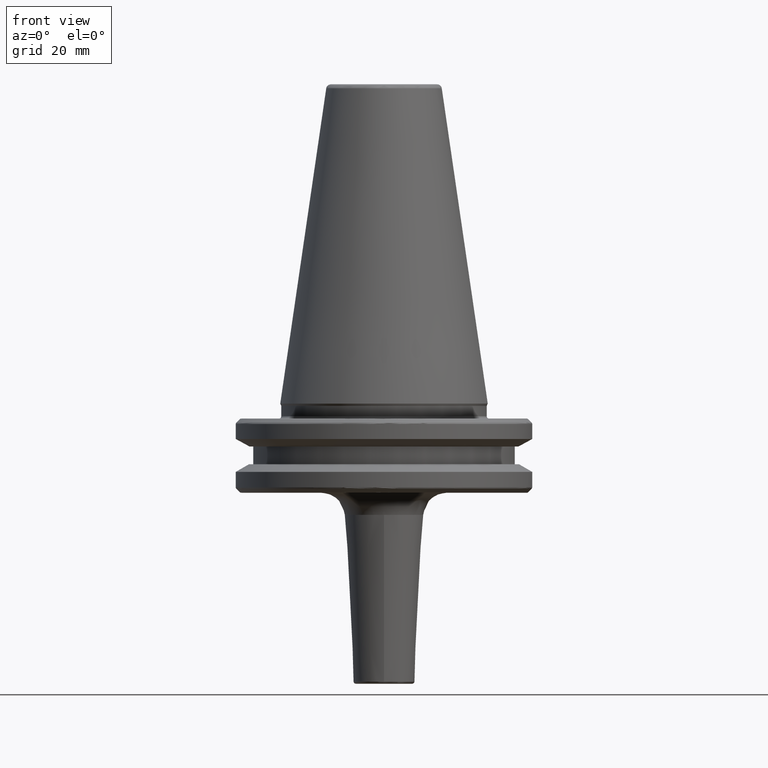
[diagram: clean part render]
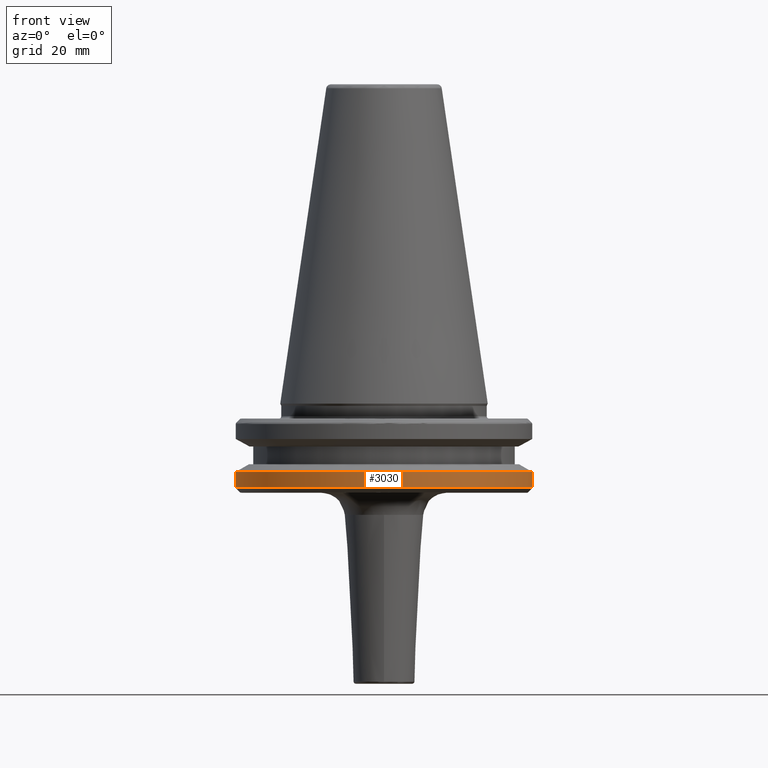
[diagram: same view with one face highlighted and labeled with its STEP entity id]
A machine part, front view. The second image highlights one B-rep face of the part: STEP entity #3030.
In plain terms, the highlighted cylindrical surface (partial cylindrical patch) has radius 31.75 mm, axis along (0, 0, 1).
Its self-contained STEP definition (entity closure, byte-faithful):
#40 = DIRECTION ( 'NONE',  ( 0.0000000000000000000, 0.0000000000000000000, 1.000000000000000000 ) ) ;
#126 = LINE ( 'NONE', #2471, #2552 ) ;
#134 = CARTESIAN_POINT ( 'NONE',  ( 0.0000000000000000000, 0.0000000000000000000, -17.93431457505076300 ) ) ;
#151 = CIRCLE ( 'NONE', #2644, 31.75000000000000700 ) ;
#194 = EDGE_CURVE ( 'NONE', #2844, #675, #1338, .T. ) ;
#218 = CARTESIAN_POINT ( 'NONE',  ( -31.75000000000000000, 3.888253587292846500E-015, -17.93431457505076300 ) ) ;
#367 = DIRECTION ( 'NONE',  ( 1.000000000000000000, 0.0000000000000000000, 0.0000000000000000000 ) ) ;
#475 = AXIS2_PLACEMENT_3D ( 'NONE', #2088, #677, #2311 ) ;
#493 = ORIENTED_EDGE ( 'NONE', *, *, #1023, .T. ) ;
#539 = DIRECTION ( 'NONE',  ( 0.0000000000000000000, 0.0000000000000000000, 1.000000000000000000 ) ) ;
#550 = CARTESIAN_POINT ( 'NONE',  ( 0.0000000000000000000, 0.0000000000000000000, 113.5216080541959500 ) ) ;
#663 = CARTESIAN_POINT ( 'NONE',  ( 0.0000000000000000000, 0.0000000000000000000, -14.62183664205671500 ) ) ;
#675 = VERTEX_POINT ( 'NONE', #2100 ) ;
#677 = DIRECTION ( 'NONE',  ( 0.0000000000000000000, 0.0000000000000000000, 1.000000000000000000 ) ) ;
#738 = CYLINDRICAL_SURFACE ( 'NONE', #2642, 31.75000000000000000 ) ;
#874 = EDGE_CURVE ( 'NONE', #1710, #2143, #2862, .T. ) ;
#890 = DIRECTION ( 'NONE',  ( -1.000000000000000000, 0.0000000000000000000, 0.0000000000000000000 ) ) ;
#943 = AXIS2_PLACEMENT_3D ( 'NONE', #134, #1773, #367 ) ;
#999 = CARTESIAN_POINT ( 'NONE',  ( -31.75000000000000000, 3.888253587292846500E-015, 113.5216080541959500 ) ) ;
#1023 = EDGE_CURVE ( 'NONE', #2844, #1710, #2428, .T. ) ;
#1151 = AXIS2_PLACEMENT_3D ( 'NONE', #1245, #2884, #1478 ) ;
#1208 = VERTEX_POINT ( 'NONE', #1307 ) ;
#1234 = EDGE_CURVE ( 'NONE', #1208, #1902, #126, .T. ) ;
#1245 = CARTESIAN_POINT ( 'NONE',  ( 0.0000000000000000000, 0.0000000000000000000, -17.93431457505076300 ) ) ;
#1281 = CARTESIAN_POINT ( 'NONE',  ( 31.75000000000000700, 0.0000000000000000000, -14.62183664205671500 ) ) ;
#1307 = CARTESIAN_POINT ( 'NONE',  ( 31.75000000000000000, 0.0000000000000000000, -17.93431457505076300 ) ) ;
#1338 = LINE ( 'NONE', #999, #2576 ) ;
#1346 = ORIENTED_EDGE ( 'NONE', *, *, #1234, .T. ) ;
#1367 = CARTESIAN_POINT ( 'NONE',  ( 30.56296919415016700, -8.600431037885712700, -17.93431457505076300 ) ) ;
#1433 = CIRCLE ( 'NONE', #1151, 31.75000000000000000 ) ;
#1478 = DIRECTION ( 'NONE',  ( 1.000000000000000000, 0.0000000000000000000, 0.0000000000000000000 ) ) ;
#1710 = VERTEX_POINT ( 'NONE', #1864 ) ;
#1773 = DIRECTION ( 'NONE',  ( -0.0000000000000000000, -0.0000000000000000000, 1.000000000000000000 ) ) ;
#1864 = CARTESIAN_POINT ( 'NONE',  ( -30.52966748735167000, -8.717907037342305500, -17.93431457505076300 ) ) ;
#1902 = VERTEX_POINT ( 'NONE', #1281 ) ;
#1958 = DIRECTION ( 'NONE',  ( 1.000000000000000000, 0.0000000000000000000, 0.0000000000000000000 ) ) ;
#1984 = FACE_OUTER_BOUND ( 'NONE', #2171, .T. ) ;
#2088 = CARTESIAN_POINT ( 'NONE',  ( 0.0000000000000000000, 0.0000000000000000000, -17.93431457505076300 ) ) ;
#2100 = CARTESIAN_POINT ( 'NONE',  ( -31.75000000000000700, 3.888253587292847300E-015, -14.62183664205671500 ) ) ;
#2140 = EDGE_CURVE ( 'NONE', #675, #1902, #151, .T. ) ;
#2143 = VERTEX_POINT ( 'NONE', #1367 ) ;
#2171 = EDGE_LOOP ( 'NONE', ( #2715, #493, #2872, #2508, #1346, #2767 ) ) ;
#2296 = DIRECTION ( 'NONE',  ( -0.0000000000000000000, -0.0000000000000000000, 1.000000000000000000 ) ) ;
#2311 = DIRECTION ( 'NONE',  ( 1.000000000000000000, 0.0000000000000000000, 0.0000000000000000000 ) ) ;
#2428 = CIRCLE ( 'NONE', #943, 31.75000000000000000 ) ;
#2471 = CARTESIAN_POINT ( 'NONE',  ( 31.75000000000000000, 0.0000000000000000000, 113.5216080541959500 ) ) ;
#2508 = ORIENTED_EDGE ( 'NONE', *, *, #3002, .T. ) ;
#2552 = VECTOR ( 'NONE', #2705, 1000.000000000000000 ) ;
#2576 = VECTOR ( 'NONE', #40, 1000.000000000000000 ) ;
#2642 = AXIS2_PLACEMENT_3D ( 'NONE', #550, #539, #1958 ) ;
#2644 = AXIS2_PLACEMENT_3D ( 'NONE', #663, #2296, #890 ) ;
#2705 = DIRECTION ( 'NONE',  ( 0.0000000000000000000, 0.0000000000000000000, 1.000000000000000000 ) ) ;
#2715 = ORIENTED_EDGE ( 'NONE', *, *, #194, .F. ) ;
#2767 = ORIENTED_EDGE ( 'NONE', *, *, #2140, .F. ) ;
#2844 = VERTEX_POINT ( 'NONE', #218 ) ;
#2862 = CIRCLE ( 'NONE', #475, 31.75000000000000000 ) ;
#2872 = ORIENTED_EDGE ( 'NONE', *, *, #874, .T. ) ;
#2884 = DIRECTION ( 'NONE',  ( -0.0000000000000000000, -0.0000000000000000000, 1.000000000000000000 ) ) ;
#3002 = EDGE_CURVE ( 'NONE', #2143, #1208, #1433, .T. ) ;
#3030 = ADVANCED_FACE ( 'NONE', ( #1984 ), #738, .T. ) ;